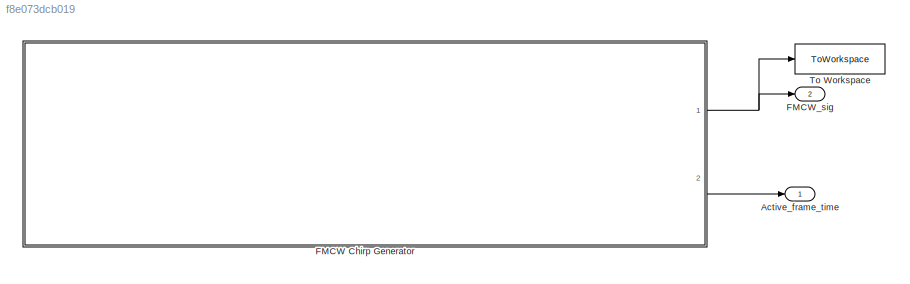
MODEL slx_f8e073dcb019
KIND model
CONFIG AbsTol = auto
CONFIG EnableMultiTasking = off
CONFIG FixedStep = auto
CONFIG MaxStep = auto
CONFIG MinStep = auto
CONFIG RelTol = 1e-3
CONFIG SampleTimeConstraint = Unconstrained
CONFIG SolverName = VariableStepAuto
CONFIG StartTime = 0.0
CONFIG StopTime = stop_time
BLOCK [Outport] Active_frame_time
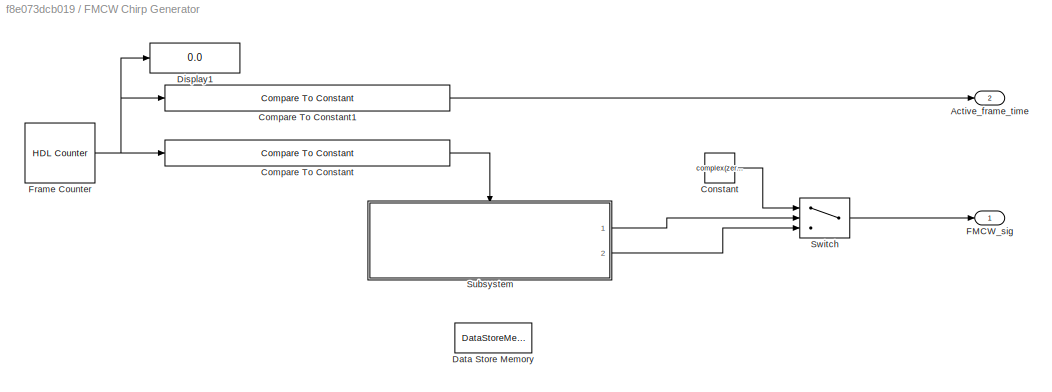
BLOCK [SubSystem] FMCW Chirp Generator
  Ports = [0, 2]
  RequestExecContextInheritance = off
BLOCK [Outport] FMCW Chirp Generator/Active_frame_time
  Port = 2
BLOCK [Reference] FMCW Chirp Generator/Compare To Constant  REF=simulink/Logic and Bit
Operations/Compare
To Constant
  Ports = [1, 1]
  SourceBlock = simulink/Logic and Bit\nOperations/Compare\nTo Constant
  SourceProductBaseCode = SL
  SourceType = Compare To Constant
BLOCK [Reference] FMCW Chirp Generator/Compare To Constant1  REF=simulink/Logic and Bit
Operations/Compare
To Constant
  Ports = [1, 1]
  SourceBlock = simulink/Logic and Bit\nOperations/Compare\nTo Constant
  SourceProductBaseCode = SL
  SourceType = Compare To Constant
BLOCK [Constant] FMCW Chirp Generator/Constant
  Value = complex(zeros(size(simulator.Victim.chirp)))
  VectorParams1D = off
BLOCK [DataStoreMemory] FMCW Chirp Generator/Data Store Memory
  DataStoreName = FMCW_chirps
  Dimensions = size(chirps)
  InitialValue = chirps
  OutDataTypeStr = double
  ReadBeforeWriteMsg = warning
  ShowAdditionalParam = off
  SignalType = complex
  WriteAfterReadMsg = warning
  WriteAfterWriteMsg = warning
BLOCK [Display] FMCW Chirp Generator/Display1
  Commented = on
  Decimation = 1
  Ports = [1]
BLOCK [Outport] FMCW Chirp Generator/FMCW_sig
BLOCK [Reference] FMCW Chirp Generator/Frame Counter  REF=hdlsllib/Sources/HDL Counter
  Ports = [0, 1]
  SourceBlock = hdlsllib/Sources/HDL Counter
  SourceProductBaseCode = SL
  SourceType = HDL Counter
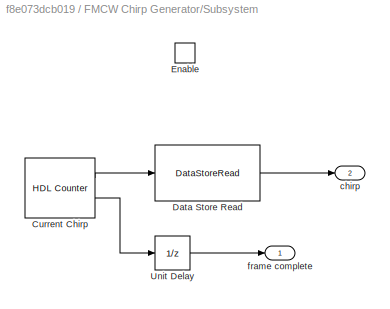
BLOCK [SubSystem] FMCW Chirp Generator/Subsystem
  Ports = [0, 2, 1]
  RequestExecContextInheritance = off
BLOCK [Reference] FMCW Chirp Generator/Subsystem/Current Chirp  REF=hdlsllib/Sources/HDL Counter
  Ports = [0, 2]
  SourceBlock = hdlsllib/Sources/HDL Counter
  SourceProductBaseCode = SL
  SourceType = HDL Counter
BLOCK [DataStoreRead] FMCW Chirp Generator/Subsystem/Data Store Read
  DataStoreElements = FMCW_chirps
  DataStoreName = FMCW_chirps
  EnableIndexing = on
  IndexOptions = Select all,Index vector (port)
  Indices = 1,1
  NumberOfDimensions = 2
  OutputSizes = 1,1
  Ports = [1, 1]
BLOCK [EnablePort] FMCW Chirp Generator/Subsystem/Enable
  Ports = []
  StatesWhenEnabling = reset
BLOCK [UnitDelay] FMCW Chirp Generator/Subsystem/Unit Delay
  HasFrameUpgradeWarning = on
  SampleTime = -1
BLOCK [Outport] FMCW Chirp Generator/Subsystem/chirp
  Port = 2
BLOCK [Outport] FMCW Chirp Generator/Subsystem/frame complete
BLOCK [Switch] FMCW Chirp Generator/Switch
  Criteria = u2 ~= 0
  InputSameDT = off
  SaturateOnIntegerOverflow = off
BLOCK [Outport] FMCW_sig
  Port = 2
BLOCK [ToWorkspace] To Workspace
  FixptAsFi = on
  MaxDataPoints = 2
  Ports = [1]
  SampleTime = -1
  VariableName = FMCW_sig
LINE FMCW Chirp Generator/Compare To Constant1:1 -> FMCW Chirp Generator/Active_frame_time:1
LINE FMCW Chirp Generator/Compare To Constant:1 -> FMCW Chirp Generator/Subsystem:enable
LINE FMCW Chirp Generator/Constant:1 -> FMCW Chirp Generator/Switch:1
NET FMCW Chirp Generator/Frame Counter:1 -> FMCW Chirp Generator/Compare To Constant1:1, FMCW Chirp Generator/Compare To Constant:1, FMCW Chirp Generator/Display1:1
LINE FMCW Chirp Generator/Subsystem/Current Chirp:1 -> FMCW Chirp Generator/Subsystem/Data Store Read:1
LINE FMCW Chirp Generator/Subsystem/Current Chirp:2 -> FMCW Chirp Generator/Subsystem/Unit Delay:1
LINE FMCW Chirp Generator/Subsystem/Data Store Read:1 -> FMCW Chirp Generator/Subsystem/chirp:1
LINE FMCW Chirp Generator/Subsystem/Unit Delay:1 -> FMCW Chirp Generator/Subsystem/frame complete:1
LINE FMCW Chirp Generator/Subsystem:1 -> FMCW Chirp Generator/Switch:2
LINE FMCW Chirp Generator/Subsystem:2 -> FMCW Chirp Generator/Switch:3
LINE FMCW Chirp Generator/Switch:1 -> FMCW Chirp Generator/FMCW_sig:1
NET FMCW Chirp Generator:1 -> FMCW_sig:1, To Workspace:1
LINE FMCW Chirp Generator:2 -> Active_frame_time:1
note: NET lines group one-source signal fan-out (src -> all destinations, sorted); 1:1 wires keep LINE
